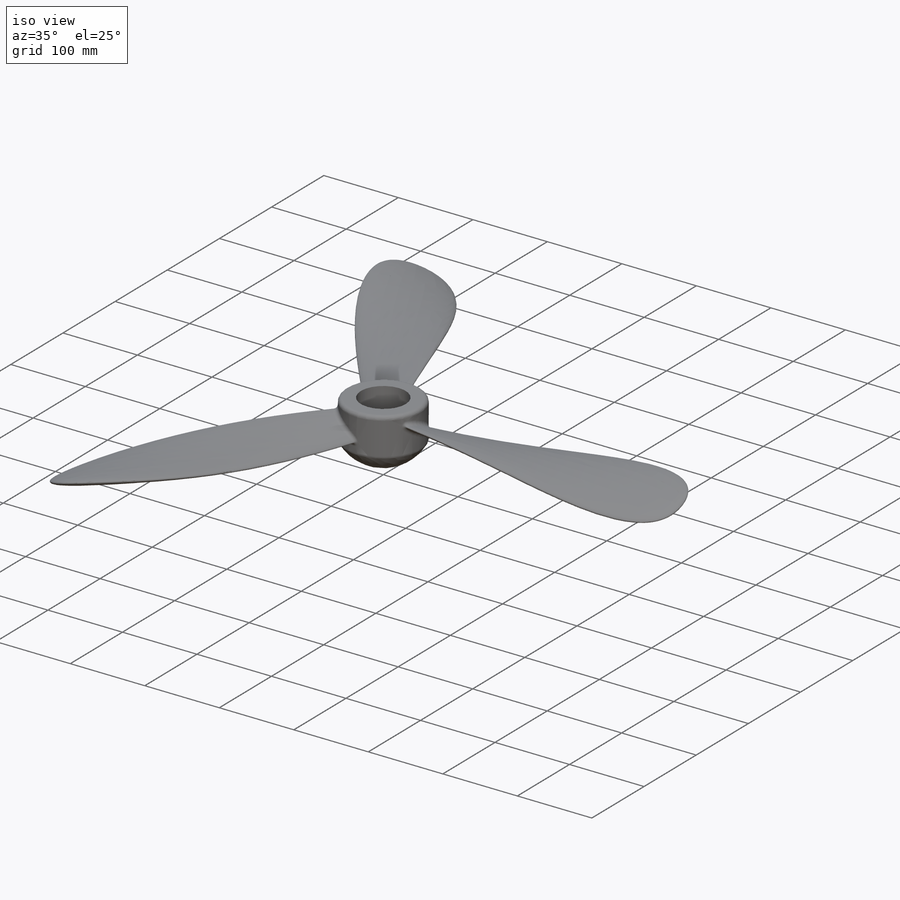
[diagram: iso view]
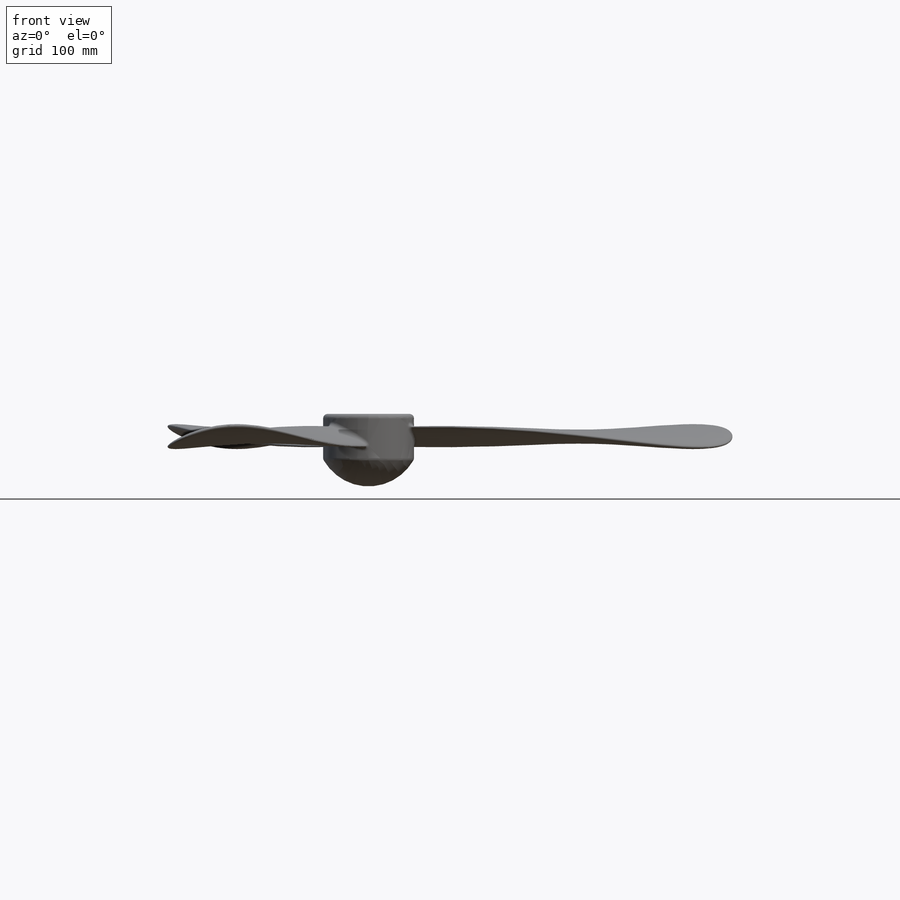
[diagram: front view]
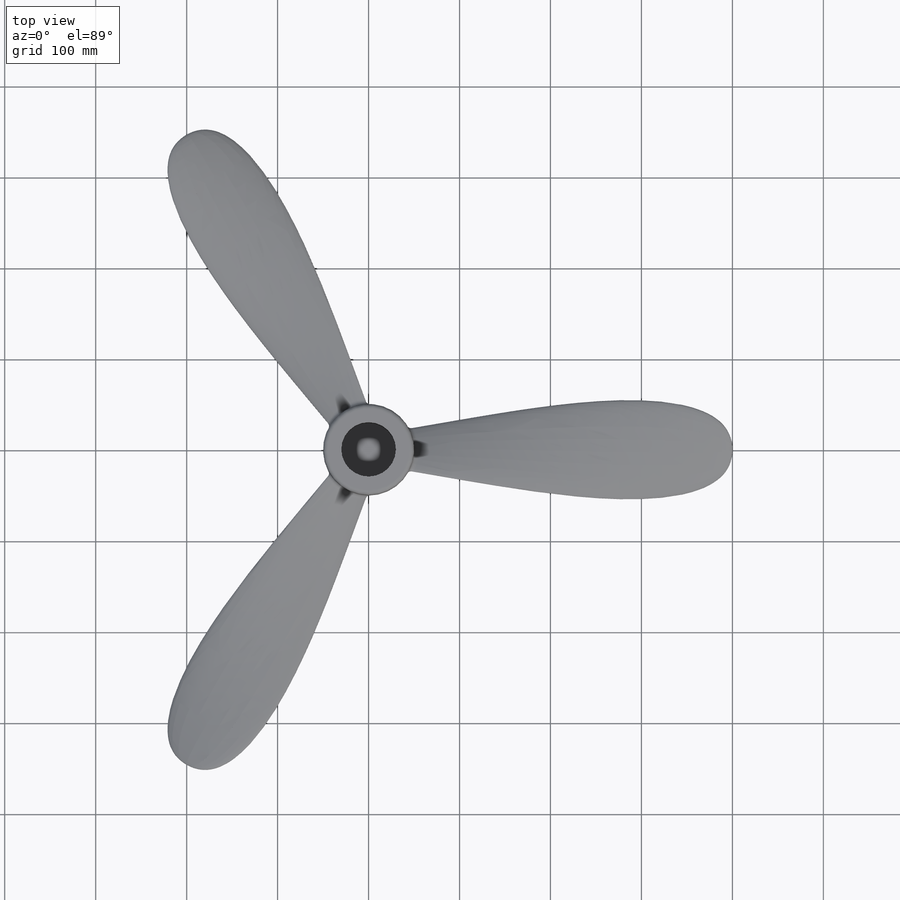
[diagram: top view]
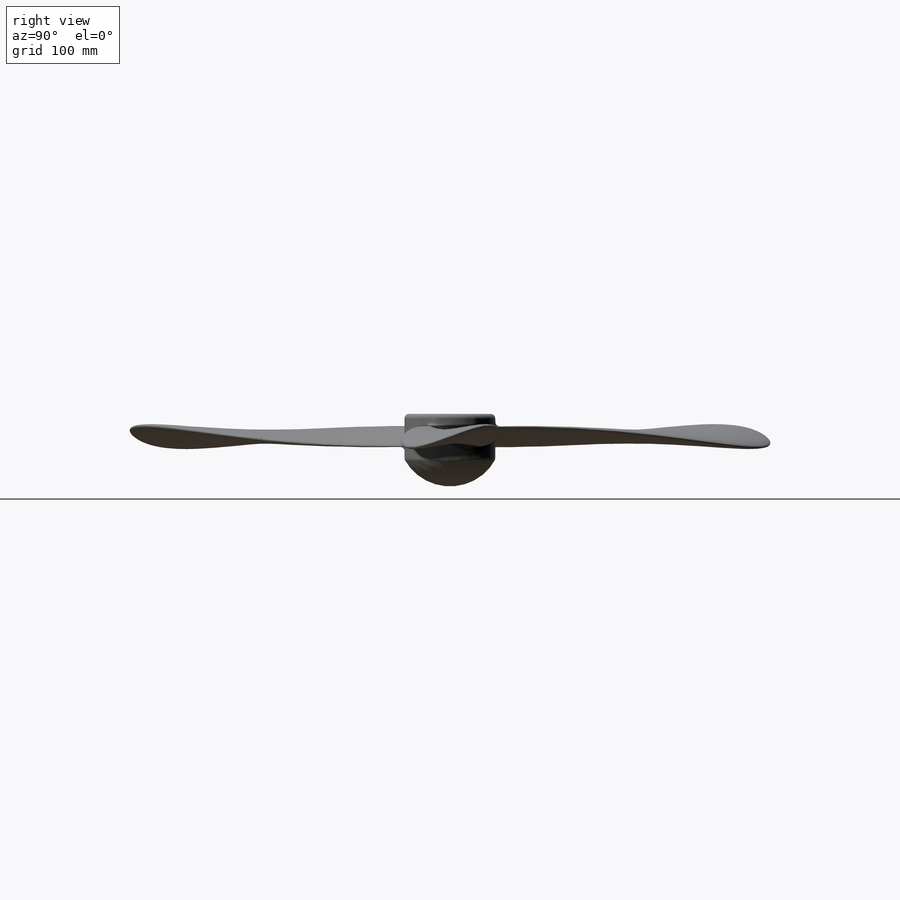
[diagram: right view]
SOLIDWORKS PART (.sldprt)
format: sldprt  version: not decoded by parser v0  size: 733,184 bytes
history: native  units: mm
features: sketch x4, plane x2, material x1, extrude x1, pattern_circular x1, boolean_combine x1, dome x1, fillet x1, cut_extrude x1 (+14 scaffold rows collapsed)
feature tree (27):
  scaffold x14  (default folders/planes/origin — collapsed)
  material  "Material <not specified>"
  sketch  "Sketch1"  dims[D1=100.0mm]
  extrude  "Extrude1"  Depth=50mm
  plane  "Plane1"  Offset=40mm
  plane  "Plane2"  Offset=400mm
  sketch  "Sketch2"  dims[D1=50.0mm D2=7.5mm]
  sketch  "Sketch5"  dims[D0=45.0deg D1=0.0mm D2=0.0mm]
  pattern_circular  "CirPattern2"  Count=3 Angle=120deg
  boolean_combine  "Combine1"
  dome  "Dome1"
  fillet  "Fillet3"  Radius=5mm
  sketch  "Sketch6"  dims[D1=60.0mm]
  cut_extrude  "Extrude2"  Depth=50mm
decode coverage: 8 of 10 modeling features carry decoded parameters
note: suppression state not decoded; provenance and decode notes live in map.json
